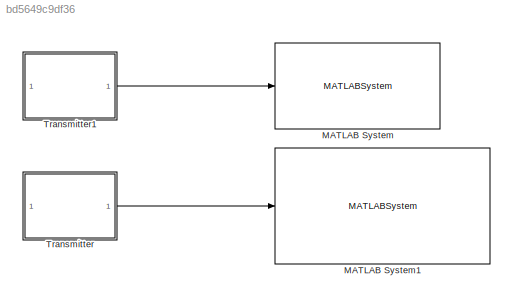
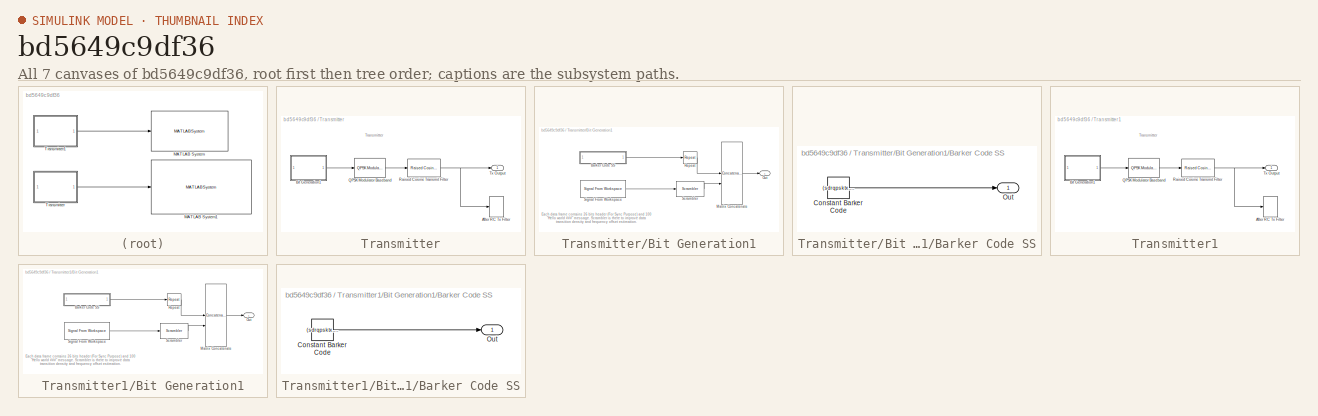
[diagram: thumbnail index - all 7 canvases of the model, root first then tree order]
MODEL slx_bd5649c9df36
KIND model
CONFIG AbsTol = auto
CONFIG EnableMultiTasking = off
CONFIG FixedStep = auto
CONFIG MaxStep = auto
CONFIG MinStep = auto
CONFIG RelTol = 1e-3
CONFIG SampleTimeConstraint = Unconstrained
CONFIG SolverName = FixedStepDiscrete
CONFIG StartTime = 0.0
CONFIG StopTime = inf
BLOCK [MATLABSystem] MATLAB System
  Commented = on
  MaskDisplay = disp(['Nuand' char(10) 'bladeRF']);\nport_label('input',1,'TX Samples');
  MaskType = bladeRF_Simulink
  SimulateUsing = Interpreted execution
  System = bladeRF_Simulink
  device_string = *:instance=1
  enable_overrun = off
  enable_rx = off
  enable_rx_biastee = off
  enable_tx = on
  enable_tx_biastee = off
  enable_underrun = off
  loopback_mode = None
  rx_agc = SLOW
  rx_bandwidth = 1.5
  rx_buf_size = sdrqpsktx.BladeRF.stream.buffer_size
  rx_frequency = sdrqpsktx.BladeRF_Frequency
  rx_gain = sdrqpsktx.BladeRF_Gain_Rx
  rx_num_buffers = sdrqpsktx.BladeRF.stream.n_buffers
  rx_num_transfers = sdrqpsktx.BladeRF.stream.n_transfers
  rx_samplerate = sdrqpsktx.BladeRF_SampleRate
  rx_step_size = sdrqpsktx.BladeRF_FrameLength
  rx_timeout_ms = sdrqpsktx.BladeRF.stream.timeout
  tx_bandwidth = 1.5
  tx_buf_size = sdrqpsktx.BladeRF.stream.buffer_size
  tx_frequency = sdrqpsktx.BladeRF_Frequency
  tx_gain = sdrqpsktx.BladeRF_Gain_Tx
  tx_num_buffers = sdrqpsktx.BladeRF.stream.n_buffers
  tx_num_transfers = sdrqpsktx.BladeRF.stream.n_transfers
  tx_samplerate = sdrqpsktx.BladeRF_SampleRate
  tx_step_size = sdrqpsktx.BladeRF_FrameLength
  tx_timeout_ms = sdrqpsktx.BladeRF.stream.timeout
  verbosity = Info
  xb200 = off
BLOCK [MATLABSystem] MATLAB System1
  MaskDisplay = disp(['Nuand' char(10) 'bladeRF 2.0' char(10) 'MIMO']);\nport_label('input',1,'TX1 Samples');
  MaskType = bladeRF_MIMO_Simulink
  SimulateUsing = Interpreted execution
  System = bladeRF_MIMO_Simulink
  device_string = *:instance=1
  enable_overrun = off
  enable_rx = off
  enable_rx2 = off
  enable_rx2_biastee = off
  enable_rx_biastee = off
  enable_tx = on
  enable_tx2 = off
  enable_tx2_biastee = off
  enable_tx_biastee = off
  enable_underrun = off
  loopback_mode = None
  rx2_agc = SLOW
  rx2_bandwidth = 1.5
  rx2_frequency = sdrqpsktx.BladeRF_Frequency
  rx2_gain = sdrqpsktx.BladeRF_Gain_Rx
  rx2_samplerate = sdrqpsktx.BladeRF_SampleRate
  rx_agc = SLOW
  rx_bandwidth = 1.5
  rx_buf_size = sdrqpsktx.BladeRF.stream.buffer_size
  rx_frequency = sdrqpsktx.BladeRF_Frequency
  rx_gain = sdrqpsktx.BladeRF_Gain_Rx
  rx_num_buffers = sdrqpsktx.BladeRF.stream.n_buffers
  rx_num_transfers = sdrqpsktx.BladeRF.stream.n_transfers
  rx_samplerate = sdrqpsktx.BladeRF_SampleRate
  rx_step_size = sdrqpsktx.BladeRF_FrameLength
  rx_timeout_ms = sdrqpsktx.BladeRF.stream.timeout
  tx2_bandwidth = 1.5
  tx2_frequency = sdrqpsktx.BladeRF_Frequency
  tx2_gain = sdrqpsktx.BladeRF_Gain_Tx
  tx2_samplerate = sdrqpsktx.BladeRF_SampleRate
  tx_bandwidth = 1.5
  tx_buf_size = sdrqpsktx.BladeRF.stream.buffer_size
  tx_frequency = sdrqpsktx.BladeRF_Frequency
  tx_gain = sdrqpsktx.BladeRF_Gain_Tx
  tx_num_buffers = sdrqpsktx.BladeRF.stream.n_buffers
  tx_num_transfers = sdrqpsktx.BladeRF.stream.n_transfers
  tx_samplerate = sdrqpsktx.BladeRF_SampleRate
  tx_step_size = sdrqpsktx.BladeRF_FrameLength
  tx_timeout_ms = sdrqpsktx.BladeRF.stream.timeout
  verbosity = Info
  xb200 = off
BLOCK [SubSystem] Transmitter
BLOCK [SpectrumAnalyzer] Transmitter/After RC Tx Filter
  AveragingMethod = Running
  Commented = on
  FFTLength = 128
  GraphicalSettings = {"GraphicalSettings":{"Style":{"AutoscaleXAxis":"true","AxesProperties":"struct","Box":"on","Color":"[0 0 0]","CurrentConfiguration":"extmgr.ConfigurationSet","FontName":"Helvetica","FontSize":"8.5","FontUnits":"points","FontWeight":"normal","IsFstartFstopSettingDirty":"true","IsRBWSettingDirty":"true","IsSpanCFSettingDirty":"true","IsSpanValuesValid":"true","IsValidSettingsDialogReadouts":"false"...<+2144ch>
  Method = Welch
  OpenAtSimulationStart = off
  RBW = 750
  RBWSource = Property
  SampleRate = 200000
  ScopeFrameLocation = window
  ScopeSpecificationString = spbscopes.SpectrumAnalyzerBlockCfg('CurrentConfiguration', extmgr.ConfigurationSet(extmgr.Configuration('Core','General UI',true,'DisplayFullSourceName',true,'ShowPlaybackToolbar',false,'FigureColor',[0.701960784313725 0.701960784313725 0.701960784313725]),extmgr.Configuration('Core','Source UI',true),extmgr.Configuration('Sources','WiredSimulink',true),extmgr.Configuration('Sources','SPTool',fals...<+6684ch>
  Span = 200000
  SpectralAverages = 2
  SpectrumUnits = dBW
  StartFrequency = -100000
  StopFrequency = 100000
  WasSavedAsWebScope = on
  YLabel = Spectrum after Raised-Cosine Tx Filter
  YLimits = [-114.15736879359562 -6.4493918406395565]
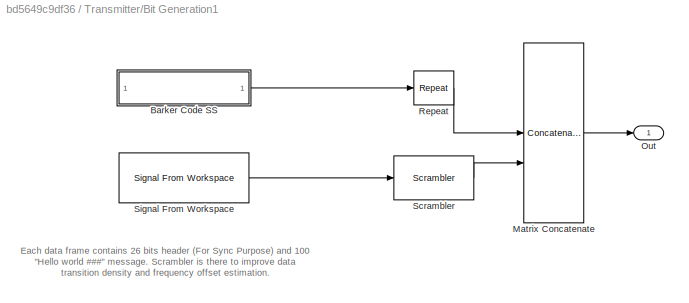
BLOCK [SubSystem] Transmitter/Bit Generation1
BLOCK [SubSystem] Transmitter/Bit Generation1/Barker Code SS
BLOCK [Constant] Transmitter/Bit Generation1/Barker Code SS/Constant Barker Code
  OutDataTypeStr = double
  Value = (sdrqpsktx.BarkerCode)' > 0; % Bipolar to Unipolar
  VectorParams1D = off
BLOCK [Outport] Transmitter/Bit Generation1/Barker Code SS/Out
  VectorParamsAs1DForOutWhenUnconnected = off
BLOCK [Concatenate] Transmitter/Bit Generation1/Matrix Concatenate
  Mode = Multidimensional array
BLOCK [Outport] Transmitter/Bit Generation1/Out
  VectorParamsAs1DForOutWhenUnconnected = off
BLOCK [Reference] Transmitter/Bit Generation1/Repeat  REF=dspsigops/Repeat
  SourceBlock = dspsigops/Repeat
  SourceType = Repeat
  UserDataPersistent = on
BLOCK [Reference] Transmitter/Bit Generation1/Scrambler  REF=commsequence2/Scrambler
  SourceBlock = commsequence2/Scrambler
  SourceType = Scrambler
BLOCK [Reference] Transmitter/Bit Generation1/Signal From Workspace  REF=dspsrcs4/Signal From
Workspace
  SourceBlock = dspsrcs4/Signal From\nWorkspace
  SourceType = Signal From Workspace
BLOCK [Reference] Transmitter/QPSK Modulator Baseband  REF=commdigbbndpm3/QPSK
Modulator
Baseband
  SourceBlock = commdigbbndpm3/QPSK\nModulator\nBaseband
  SourceType = QPSK Modulator Baseband
BLOCK [Reference] Transmitter/Raised Cosine Transmit Filter  REF=commfilt2/Raised Cosine
Transmit Filter
  SourceBlock = commfilt2/Raised Cosine\nTransmit Filter
  SourceType = Raised Cosine Transmit Filter
  UserDataPersistent = on
BLOCK [Outport] Transmitter/Tx Output
  VectorParamsAs1DForOutWhenUnconnected = off
BLOCK [SubSystem] Transmitter1
  Commented = on
BLOCK [SpectrumAnalyzer] Transmitter1/After RC Tx Filter
  AveragingMethod = Running
  FFTLength = 128
  GraphicalSettings = {"GraphicalSettings":{"Style":{"AutoscaleXAxis":"true","AxesProperties":"struct","Box":"on","Color":"[0 0 0]","CurrentConfiguration":"extmgr.ConfigurationSet","FontName":"Helvetica","FontSize":"8.5","FontUnits":"points","FontWeight":"normal","IsFstartFstopSettingDirty":"true","IsRBWSettingDirty":"true","IsSpanCFSettingDirty":"true","IsSpanValuesValid":"true","IsValidSettingsDialogReadouts":"false"...<+2144ch>
  Method = Welch
  OpenAtSimulationStart = off
  RBW = 750
  RBWSource = Property
  SampleRate = 200000
  ScopeFrameLocation = window
  ScopeSpecificationString = spbscopes.SpectrumAnalyzerBlockCfg('CurrentConfiguration', extmgr.ConfigurationSet(extmgr.Configuration('Core','General UI',true,'DisplayFullSourceName',true,'ShowPlaybackToolbar',false,'FigureColor',[0.701960784313725 0.701960784313725 0.701960784313725]),extmgr.Configuration('Core','Source UI',true),extmgr.Configuration('Sources','WiredSimulink',true),extmgr.Configuration('Sources','SPTool',fals...<+6684ch>
  Span = 200000
  SpectralAverages = 2
  SpectrumUnits = dBW
  StartFrequency = -100000
  StopFrequency = 100000
  WasSavedAsWebScope = on
  YLabel = Spectrum after Raised-Cosine Tx Filter
  YLimits = [-114.15736879359562 -6.4493918406395565]
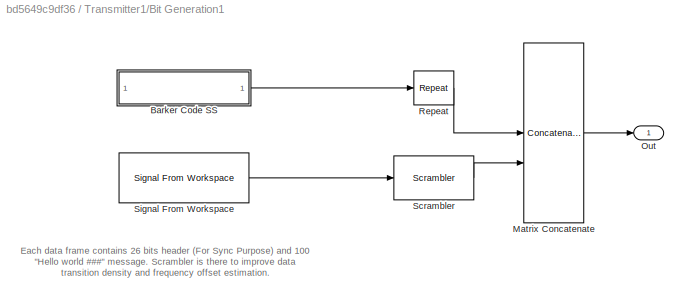
BLOCK [SubSystem] Transmitter1/Bit Generation1
BLOCK [SubSystem] Transmitter1/Bit Generation1/Barker Code SS
BLOCK [Constant] Transmitter1/Bit Generation1/Barker Code SS/Constant Barker Code
  OutDataTypeStr = double
  Value = (sdrqpsktx.BarkerCode)' > 0; % Bipolar to Unipolar
  VectorParams1D = off
BLOCK [Outport] Transmitter1/Bit Generation1/Barker Code SS/Out
  VectorParamsAs1DForOutWhenUnconnected = off
BLOCK [Concatenate] Transmitter1/Bit Generation1/Matrix Concatenate
  Mode = Multidimensional array
BLOCK [Outport] Transmitter1/Bit Generation1/Out
  VectorParamsAs1DForOutWhenUnconnected = off
BLOCK [Reference] Transmitter1/Bit Generation1/Repeat  REF=dspsigops/Repeat
  SourceBlock = dspsigops/Repeat
  SourceType = Repeat
  UserDataPersistent = on
BLOCK [Reference] Transmitter1/Bit Generation1/Scrambler  REF=commsequence2/Scrambler
  SourceBlock = commsequence2/Scrambler
  SourceType = Scrambler
BLOCK [Reference] Transmitter1/Bit Generation1/Signal From Workspace  REF=dspsrcs4/Signal From
Workspace
  SourceBlock = dspsrcs4/Signal From\nWorkspace
  SourceType = Signal From Workspace
BLOCK [Reference] Transmitter1/QPSK Modulator Baseband  REF=commdigbbndpm3/QPSK
Modulator
Baseband
  SourceBlock = commdigbbndpm3/QPSK\nModulator\nBaseband
  SourceType = QPSK Modulator Baseband
BLOCK [Reference] Transmitter1/Raised Cosine Transmit Filter  REF=commfilt2/Raised Cosine
Transmit Filter
  SourceBlock = commfilt2/Raised Cosine\nTransmit Filter
  SourceType = Raised Cosine Transmit Filter
  UserDataPersistent = on
BLOCK [Outport] Transmitter1/Tx Output
  VectorParamsAs1DForOutWhenUnconnected = off
ANNOTATION Transmitter: Transmitter
ANNOTATION Transmitter/Bit Generation1: Each data frame contains 26 bits header (For Sync Purpose) and 100 "Hello world ###" message. Scrambler is there to improve data transition density and frequency offset estimation.
ANNOTATION Transmitter1: Transmitter
ANNOTATION Transmitter1/Bit Generation1: Each data frame contains 26 bits header (For Sync Purpose) and 100 "Hello world ###" message. Scrambler is there to improve data transition density and frequency offset estimation.
LINE Transmitter/Bit Generation1/Barker Code SS/Constant Barker Code:1 -> Transmitter/Bit Generation1/Barker Code SS/Out:1
LINE Transmitter/Bit Generation1/Barker Code SS:1 -> Transmitter/Bit Generation1/Repeat:1
LINE Transmitter/Bit Generation1/Matrix Concatenate:1 -> Transmitter/Bit Generation1/Out:1
LINE Transmitter/Bit Generation1/Repeat:1 -> Transmitter/Bit Generation1/Matrix Concatenate:1
LINE Transmitter/Bit Generation1/Scrambler:1 -> Transmitter/Bit Generation1/Matrix Concatenate:2
LINE Transmitter/Bit Generation1/Signal From Workspace:1 -> Transmitter/Bit Generation1/Scrambler:1
LINE Transmitter/Bit Generation1:1 -> Transmitter/QPSK Modulator Baseband:1
LINE Transmitter/QPSK Modulator Baseband:1 -> Transmitter/Raised Cosine Transmit Filter:1
NET Transmitter/Raised Cosine Transmit Filter:1 -> Transmitter/After RC Tx Filter:1, Transmitter/Tx Output:1
LINE Transmitter1/Bit Generation1/Barker Code SS/Constant Barker Code:1 -> Transmitter1/Bit Generation1/Barker Code SS/Out:1
LINE Transmitter1/Bit Generation1/Barker Code SS:1 -> Transmitter1/Bit Generation1/Repeat:1
LINE Transmitter1/Bit Generation1/Matrix Concatenate:1 -> Transmitter1/Bit Generation1/Out:1
LINE Transmitter1/Bit Generation1/Repeat:1 -> Transmitter1/Bit Generation1/Matrix Concatenate:1
LINE Transmitter1/Bit Generation1/Scrambler:1 -> Transmitter1/Bit Generation1/Matrix Concatenate:2
LINE Transmitter1/Bit Generation1/Signal From Workspace:1 -> Transmitter1/Bit Generation1/Scrambler:1
LINE Transmitter1/Bit Generation1:1 -> Transmitter1/QPSK Modulator Baseband:1
LINE Transmitter1/QPSK Modulator Baseband:1 -> Transmitter1/Raised Cosine Transmit Filter:1
NET Transmitter1/Raised Cosine Transmit Filter:1 -> Transmitter1/After RC Tx Filter:1, Transmitter1/Tx Output:1
LINE Transmitter1:1 -> MATLAB System:1
LINE Transmitter:1 -> MATLAB System1:1
note: NET lines group one-source signal fan-out (src -> all destinations, sorted); 1:1 wires keep LINE
